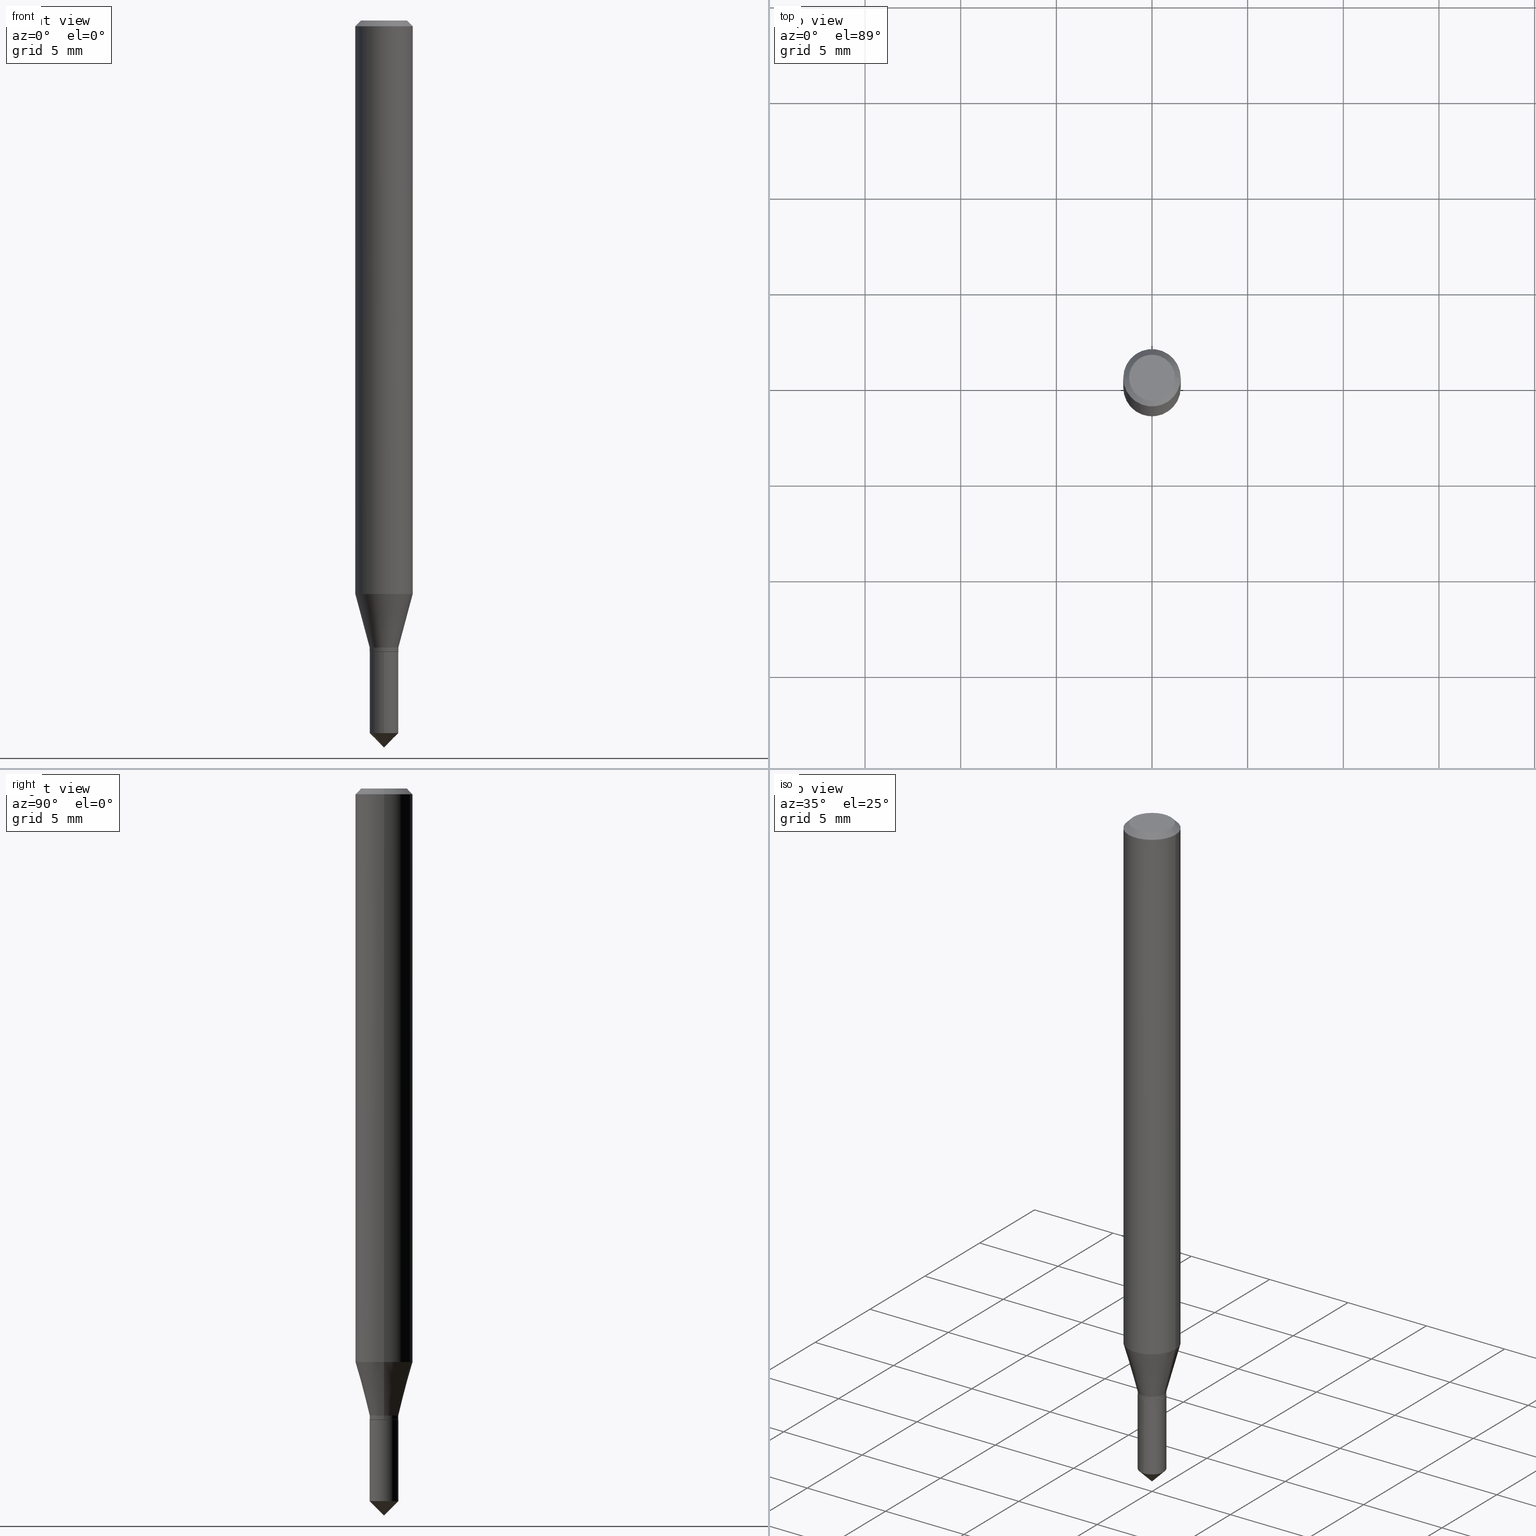
[diagram: canonical four-view strip — front | top / right | iso, engineering-drawing reading convention]
A machine part, canonical four-view strip (front | top / right | iso — engineering-drawing reading convention). The complete STEP part file that produces these views, byte-faithful:
ISO-10303-21;
HEADER;
FILE_DESCRIPTION (( 'STEP AP203' ),
    '1' );
FILE_NAME ('07037.STEP',
    '2024-04-23T19:21:59',
    ( '' ),
    ( '' ),
    'SwSTEP 2.0',
    'SolidWorks 2023',
    '' );
FILE_SCHEMA (( 'CONFIG_CONTROL_DESIGN' ));
ENDSEC;

DATA;
#1 = AXIS2_PLACEMENT_3D ( 'NONE', #48, #167, #169 ) ;
#2 = DIRECTION ( 'NONE',  ( -2.438088387897960049E-29, 3.491481338843145188E-15, 1.000000000000000000 ) ) ;
#3 = VECTOR ( 'NONE', #103, 39.37007874015748143 ) ;
#4 = PERSON_AND_ORGANIZATION_ROLE ( 'classification_officer' ) ;
#5 = EDGE_LOOP ( 'NONE', ( #438, #41, #451 ) ) ;
#6 = CARTESIAN_POINT ( 'NONE',  ( -2.063465471255932489E-16, -0.02955000000000511384, -1.466550000000000020 ) ) ;
#7 = PERSON_AND_ORGANIZATION_ROLE ( 'design_supplier' ) ;
#8 = EDGE_CURVE ( 'NONE', #191, #115, #368, .T. ) ;
#9 = VERTEX_POINT ( 'NONE', #397 ) ;
#10 = DIRECTION ( 'NONE',  ( -2.456664372604500601E-29, 3.475448650518548198E-15, 1.000000000000000000 ) ) ;
#11 = VECTOR ( 'NONE', #177, 39.37007874015747433 ) ;
#12 = CONICAL_SURFACE ( 'NONE', #30, 0.05904999999999999832, 0.7853981633974452814 ) ;
#13 = ORIENTED_EDGE ( 'NONE', *, *, #104, .F. ) ;
#14 = VECTOR ( 'NONE', #237, 39.37007874015748143 ) ;
#15 = DIRECTION ( 'NONE',  ( -2.445468806185136597E-29, 3.491481338843145583E-15, 1.000000000000000000 ) ) ;
#16 = ORIENTED_EDGE ( 'NONE', *, *, #302, .F. ) ;
#17 = DIRECTION ( 'NONE',  ( -2.445468806185136597E-29, 3.491481338843145583E-15, 1.000000000000000000 ) ) ;
#18 = AXIS2_PLACEMENT_3D ( 'NONE', #67, #476, #141 ) ;
#19 = EDGE_LOOP ( 'NONE', ( #22, #416, #166, #194 ) ) ;
#20 = FACE_OUTER_BOUND ( 'NONE', #374, .T. ) ;
#21 = EDGE_CURVE ( 'NONE', #426, #285, #155, .T. ) ;
#22 = ORIENTED_EDGE ( 'NONE', *, *, #364, .F. ) ;
#23 = AXIS2_PLACEMENT_3D ( 'NONE', #260, #304, #114 ) ;
#24 = LINE ( 'NONE', #175, #341 ) ;
#25 = AXIS2_PLACEMENT_3D ( 'NONE', #204, #10, #137 ) ;
#26 = DIRECTION ( 'NONE',  ( -2.445468806185136597E-29, 3.491481338843145583E-15, 1.000000000000000000 ) ) ;
#27 = CC_DESIGN_PERSON_AND_ORGANIZATION_ASSIGNMENT ( #120, #486, ( #144 ) ) ;
#28 = CARTESIAN_POINT ( 'NONE',  ( 8.265746106709734507E-48, -1.180129479067563789E-33, -3.380025165646692144E-19 ) ) ;
#29 = LINE ( 'NONE', #143, #138 ) ;
#30 = AXIS2_PLACEMENT_3D ( 'NONE', #75, #40, #69 ) ;
#31 = CIRCLE ( 'NONE', #454, 0.05904999999999999832 ) ;
#32 = CARTESIAN_POINT ( 'NONE',  ( 2.886153292546952505E-29, -4.120661991877192958E-15, -1.180204501176717713 ) ) ;
#33 = EDGE_CURVE ( 'NONE', #431, #9, #54, .T. ) ;
#34 = DIRECTION ( 'NONE',  ( 1.000000000000000000, -6.982962677686266711E-15, 4.876176775795936353E-29 ) ) ;
#35 = PRODUCT_DEFINITION_FORMATION_WITH_SPECIFIED_SOURCE ( 'ANY', '', #254, .NOT_KNOWN. ) ;
#36 = AXIS2_PLACEMENT_3D ( 'NONE', #432, #15, #86 ) ;
#37 = ADVANCED_FACE ( 'NONE', ( #277 ), #265, .T. ) ;
#38 = FACE_OUTER_BOUND ( 'NONE', #43, .T. ) ;
#39 = ORIENTED_EDGE ( 'NONE', *, *, #33, .T. ) ;
#40 = DIRECTION ( 'NONE',  ( 2.445468806185136597E-29, -3.491481338843145583E-15, -1.000000000000000000 ) ) ;
#41 = ORIENTED_EDGE ( 'NONE', *, *, #403, .T. ) ;
#42 = COORDINATED_UNIVERSAL_TIME_OFFSET ( 5, 0, .BEHIND. ) ;
#43 = EDGE_LOOP ( 'NONE', ( #378, #281, #82, #305 ) ) ;
#44 = LINE ( 'NONE', #358, #173 ) ;
#45 = ADVANCED_FACE ( 'NONE', ( #91 ), #243, .T. ) ;
#46 = PERSON_AND_ORGANIZATION ( #371, #363 ) ;
#47 = ORIENTED_EDGE ( 'NONE', *, *, #364, .T. ) ;
#48 = CARTESIAN_POINT ( 'NONE',  ( 3.155388400620681599E-29, -4.505058371509310392E-15, -1.290300000000000002 ) ) ;
#49 = VERTEX_POINT ( 'NONE', #406 ) ;
#50 = MANIFOLD_SOLID_BREP ( 'Body-Move/Copy2[2]', #386 ) ;
#51 = DIRECTION ( 'NONE',  ( 1.000000000000000000, -6.982962677686277755E-15, 0.000000000000000000 ) ) ;
#52 = CC_DESIGN_APPROVAL ( #283, ( #185 ) ) ;
#53 = DIRECTION ( 'NONE',  ( -2.445468806185136597E-29, 3.491481338843145583E-15, 1.000000000000000000 ) ) ;
#54 = CIRCLE ( 'NONE', #209, 0.02904999999999999943 ) ;
#55 = LINE ( 'NONE', #460, #290 ) ;
#56 = APPROVAL ( #384, 'UNSPECIFIED' ) ;
#57 = CARTESIAN_POINT ( 'NONE',  ( 0.000000000000000000, 0.000000000000000000, 0.000000000000000000 ) ) ;
#58 = FACE_OUTER_BOUND ( 'NONE', #131, .T. ) ;
#59 = ORIENTED_EDGE ( 'NONE', *, *, #321, .T. ) ;
#60 = CARTESIAN_POINT ( 'NONE',  ( 0.02954999999999998253, -4.711404918634939214E-15, -1.290300000000000002 ) ) ;
#61 = LOCAL_TIME ( 15, 21, 59.00000000000000000, #490 ) ;
#62 = CARTESIAN_POINT ( 'NONE',  ( -0.02954999999999998253, -4.295092993092201035E-15, -1.290300000000000002 ) ) ;
#63 = EDGE_CURVE ( 'NONE', #274, #49, #31, .T. ) ;
#64 = UNCERTAINTY_MEASURE_WITH_UNIT (LENGTH_MEASURE( 1.000000000000000082E-05 ), #221, 'distance_accuracy_value', 'NONE');
#65 = CYLINDRICAL_SURFACE ( 'NONE', #258, 0.02954999999999998253 ) ;
#66 = CARTESIAN_POINT ( 'NONE',  ( 0.000000000000000000, 0.000000000000000000, 0.000000000000000000 ) ) ;
#67 = CARTESIAN_POINT ( 'NONE',  ( 3.588275855751092435E-29, -5.117748887089293560E-15, -1.466550000000000020 ) ) ;
#68 = ADVANCED_FACE ( 'NONE', ( #20 ), #242, .T. ) ;
#69 = DIRECTION ( 'NONE',  ( -1.000000000000000000, 6.982962677686266711E-15, 0.000000000000000000 ) ) ;
#70 = EDGE_LOOP ( 'NONE', ( #389, #47, #385, #159 ) ) ;
#71 = CYLINDRICAL_SURFACE ( 'NONE', #264, 0.02954999999999998253 ) ;
#72 = EDGE_LOOP ( 'NONE', ( #234, #322, #112 ) ) ;
#73 = ADVANCED_FACE ( 'NONE', ( #280 ), #396, .T. ) ;
#74 = FACE_OUTER_BOUND ( 'NONE', #272, .T. ) ;
#75 = CARTESIAN_POINT ( 'NONE',  ( 2.888098660104664204E-31, -4.123439461173780263E-17, -0.01181000000000007218 ) ) ;
#76 = EDGE_LOOP ( 'NONE', ( #324, #345 ) ) ;
#77 = COORDINATED_UNIVERSAL_TIME_OFFSET ( 5, 0, .BEHIND. ) ;
#78 = PERSON_AND_ORGANIZATION ( #371, #363 ) ;
#79 = ORIENTED_EDGE ( 'NONE', *, *, #375, .T. ) ;
#80 = CIRCLE ( 'NONE', #192, 0.02954999999999998253 ) ;
#81 = AXIS2_PLACEMENT_3D ( 'NONE', #351, #239, #135 ) ;
#82 = ORIENTED_EDGE ( 'NONE', *, *, #157, .T. ) ;
#83 = ADVANCED_FACE ( 'NONE', ( #430 ), #306, .T. ) ;
#84 = DIRECTION ( 'NONE',  ( -0.7071067811865453523, 2.468850131082234184E-15, -0.7071067811865496822 ) ) ;
#85 = CARTESIAN_POINT ( 'NONE',  ( 2.886153292546952505E-29, -4.120661991877192958E-15, -1.180204501176717713 ) ) ;
#86 = DIRECTION ( 'NONE',  ( 1.000000000000000000, -6.982962677686265922E-15, 0.000000000000000000 ) ) ;
#87 = ORIENTED_EDGE ( 'NONE', *, *, #375, .F. ) ;
#88 = CARTESIAN_POINT ( 'NONE',  ( 3.175930338592637077E-29, -4.534386814755593230E-15, -1.298699999999999966 ) ) ;
#89 = EDGE_CURVE ( 'NONE', #285, #426, #482, .T. ) ;
#90 = CONICAL_SURFACE ( 'NONE', #235, 0.02904999999999999943, 0.7853981633978068810 ) ;
#91 = FACE_OUTER_BOUND ( 'NONE', #70, .T. ) ;
#92 = CIRCLE ( 'NONE', #217, 0.02954999999999998253 ) ;
#93 = CARTESIAN_POINT ( 'NONE',  ( -2.063465471255973904E-16, -0.02955000000000453791, -1.299199999999999910 ) ) ;
#94 = DIRECTION ( 'NONE',  ( -2.445468806185136597E-29, 3.491481338843145583E-15, 1.000000000000000000 ) ) ;
#95 = DIRECTION ( 'NONE',  ( 1.000000000000000000, -6.982962677686265922E-15, 0.000000000000000000 ) ) ;
#96 = VECTOR ( 'NONE', #409, 39.37007874015748854 ) ;
#97 = CC_DESIGN_PERSON_AND_ORGANIZATION_ASSIGNMENT ( #418, #379, ( #254 ) ) ;
#98 = DIRECTION ( 'NONE',  ( 1.000000000000000000, -6.982962677686277755E-15, 0.000000000000000000 ) ) ;
#99 = CARTESIAN_POINT ( 'NONE',  ( -2.063465471255973657E-16, -0.02955000000000453445, -1.299199999999999910 ) ) ;
#100 = CC_DESIGN_SECURITY_CLASSIFICATION ( #185, ( #35 ) ) ;
#101 = DESIGN_CONTEXT ( 'detailed design', #172, 'design' ) ;
#102 = DIRECTION ( 'NONE',  ( 5.024295867788063179E-15, 0.7071067811865501263, 0.7071067811865449082 ) ) ;
#103 = DIRECTION ( 'NONE',  ( -2.445468806185136877E-29, 3.491481338843145188E-15, 1.000000000000000000 ) ) ;
#104 = EDGE_CURVE ( 'NONE', #424, #459, #92, .T. ) ;
#105 = DIRECTION ( 'NONE',  ( -2.445468806185136597E-29, 3.491481338843145583E-15, 1.000000000000000000 ) ) ;
#106 = CARTESIAN_POINT ( 'NONE',  ( -0.02904999999999999943, -4.329719890686704697E-15, -1.299199999999999688 ) ) ;
#107 =( GEOMETRIC_REPRESENTATION_CONTEXT ( 3 ) GLOBAL_UNCERTAINTY_ASSIGNED_CONTEXT ( ( #64 ) ) GLOBAL_UNIT_ASSIGNED_CONTEXT ( ( #221, #377, #150 ) ) REPRESENTATION_CONTEXT ( 'NONE', 'WORKASPACE' ) );
#108 = AXIS2_PLACEMENT_3D ( 'NONE', #428, #286, #51 ) ;
#109 = APPLICATION_PROTOCOL_DEFINITION ( 'international standard', 'config_control_design', 1994, #347 ) ;
#110 = CALENDAR_DATE ( 2024, 23, 4 ) ;
#111 = PLANE ( 'NONE',  #296 ) ;
#112 = ORIENTED_EDGE ( 'NONE', *, *, #356, .F. ) ;
#113 = CC_DESIGN_PERSON_AND_ORGANIZATION_ASSIGNMENT ( #161, #4, ( #185 ) ) ;
#114 = DIRECTION ( 'NONE',  ( -6.982962677686265922E-15, -1.000000000000000000, 0.000000000000000000 ) ) ;
#115 = VERTEX_POINT ( 'NONE', #470 ) ;
#116 = CALENDAR_DATE ( 2024, 23, 4 ) ;
#117 = AXIS2_PLACEMENT_3D ( 'NONE', #390, #353, #247 ) ;
#118 = FACE_OUTER_BOUND ( 'NONE', #207, .T. ) ;
#119 = EDGE_LOOP ( 'NONE', ( #87, #39, #240, #219 ) ) ;
#120 = PERSON_AND_ORGANIZATION ( #371, #363 ) ;
#121 = COORDINATED_UNIVERSAL_TIME_OFFSET ( 5, 0, .BEHIND. ) ;
#122 = ORIENTED_EDGE ( 'NONE', *, *, #356, .T. ) ;
#123 = PERSON_AND_ORGANIZATION ( #371, #363 ) ;
#124 = EDGE_CURVE ( 'NONE', #151, #274, #55, .T. ) ;
#125 = ORIENTED_EDGE ( 'NONE', *, *, #228, .F. ) ;
#126 = LINE ( 'NONE', #275, #14 ) ;
#127 = CC_DESIGN_APPROVAL ( #457, ( #35 ) ) ;
#128 = CONICAL_SURFACE ( 'NONE', #405, 0.05904999999999999832, 0.7853981633974452814 ) ;
#129 = ORIENTED_EDGE ( 'NONE', *, *, #21, .F. ) ;
#130 = FACE_OUTER_BOUND ( 'NONE', #236, .T. ) ;
#131 = EDGE_LOOP ( 'NONE', ( #429, #359, #487, #261 ) ) ;
#132 = CARTESIAN_POINT ( 'NONE',  ( -0.05905000000000014404, -3.701086506410853465E-15, -1.180204501176717713 ) ) ;
#133 = ADVANCED_FACE ( 'NONE', ( #434 ), #463, .T. ) ;
#134 = DIRECTION ( 'NONE',  ( -6.982962677686265922E-15, -1.000000000000000000, 3.552713678800499746E-15 ) ) ;
#135 = DIRECTION ( 'NONE',  ( -6.982962677686265922E-15, -1.000000000000000000, 0.000000000000000000 ) ) ;
#136 = ORIENTED_EDGE ( 'NONE', *, *, #348, .F. ) ;
#137 = DIRECTION ( 'NONE',  ( -6.982962677686265922E-15, -1.000000000000000000, 0.000000000000000000 ) ) ;
#138 = VECTOR ( 'NONE', #256, 39.37007874015748143 ) ;
#139 = CARTESIAN_POINT ( 'NONE',  ( 3.177153072995728197E-29, -4.536132555425013945E-15, -1.299199999999999688 ) ) ;
#140 = DIRECTION ( 'NONE',  ( 1.000000000000000000, -6.982962677686266711E-15, 4.876185090822587894E-29 ) ) ;
#141 = DIRECTION ( 'NONE',  ( -6.982962677686265922E-15, -1.000000000000000000, 0.000000000000000000 ) ) ;
#142 = AXIS2_PLACEMENT_3D ( 'NONE', #366, #480, #210 ) ;
#143 = CARTESIAN_POINT ( 'NONE',  ( 0.05905000000000006771, -4.123439461173745257E-16, 2.879382386107503723E-30 ) ) ;
#144 = PRODUCT_DEFINITION ( 'UNKNOWN', '', #35, #101 ) ;
#145 = CARTESIAN_POINT ( 'NONE',  ( 0.02954999999999998253, -2.063465471256290681E-16, 1.440910237247698194E-30 ) ) ;
#146 = EDGE_CURVE ( 'NONE', #9, #431, #297, .T. ) ;
#147 =( LENGTH_UNIT ( ) NAMED_UNIT ( * ) SI_UNIT ( $, .METRE. ) );
#148 = PERSON_AND_ORGANIZATION_ROLE ( 'creator' ) ;
#149 = PRODUCT_DEFINITION_SHAPE ( 'NONE', 'NONE',  #144 ) ;
#150 =( NAMED_UNIT ( * ) SI_UNIT ( $, .STERADIAN. ) SOLID_ANGLE_UNIT ( ) );
#151 = VERTEX_POINT ( 'NONE', #201 ) ;
#152 = APPROVAL_ROLE ( '' ) ;
#153 = CARTESIAN_POINT ( 'NONE',  ( 2.888098660104664204E-31, -4.123439461173780263E-17, -0.01181000000000007218 ) ) ;
#154 = ORIENTED_EDGE ( 'NONE', *, *, #146, .F. ) ;
#155 = CIRCLE ( 'NONE', #376, 0.02954999999999998253 ) ;
#156 = LENGTH_MEASURE_WITH_UNIT ( LENGTH_MEASURE( 0.02539999999999999897 ), #147 );
#157 = EDGE_CURVE ( 'NONE', #336, #49, #44, .T. ) ;
#158 = APPROVAL_ROLE ( '' ) ;
#159 = ORIENTED_EDGE ( 'NONE', *, *, #334, .F. ) ;
#160 = CARTESIAN_POINT ( 'NONE',  ( 2.099653784171454233E-16, 0.02954999999999487897, -1.466550000000000020 ) ) ;
#161 = PERSON_AND_ORGANIZATION ( #371, #363 ) ;
#162 = ORIENTED_EDGE ( 'NONE', *, *, #89, .T. ) ;
#163 = DIRECTION ( 'NONE',  ( 0.7071067811865453523, -7.319954787623248157E-15, -0.7071067811865496822 ) ) ;
#164 = CIRCLE ( 'NONE', #224, 0.02954999999999999641 ) ;
#165 = ADVANCED_FACE ( 'NONE', ( #198 ), #439, .T. ) ;
#166 = ORIENTED_EDGE ( 'NONE', *, *, #334, .T. ) ;
#167 = DIRECTION ( 'NONE',  ( -2.445468806185136597E-29, 3.491481338843145583E-15, 1.000000000000000000 ) ) ;
#168 = ORIENTED_EDGE ( 'NONE', *, *, #348, .T. ) ;
#169 = DIRECTION ( 'NONE',  ( 1.000000000000000000, -6.982962677686265922E-15, 0.000000000000000000 ) ) ;
#170 = VERTEX_POINT ( 'NONE', #93 ) ;
#171 = CARTESIAN_POINT ( 'NONE',  ( 3.675415567853592762E-29, -5.199618726040799515E-15, -1.496099999999999985 ) ) ;
#172 = APPLICATION_CONTEXT ( 'configuration controlled 3d designs of mechanical parts and assemblies' ) ;
#173 = VECTOR ( 'NONE', #84, 39.37007874015748143 ) ;
#174 = DIRECTION ( 'NONE',  ( 1.000000000000000000, -6.982962677686272233E-15, 0.000000000000000000 ) ) ;
#175 = CARTESIAN_POINT ( 'NONE',  ( 3.646325008069517362E-29, -5.241278063383433293E-15, -1.496099999999999985 ) ) ;
#176 = ADVANCED_FACE ( 'NONE', ( #58 ), #128, .T. ) ;
#177 = DIRECTION ( 'NONE',  ( -0.2588190451025214611, 5.211531920934551042E-15, 0.9659258262890682012 ) ) ;
#178 = CARTESIAN_POINT ( 'NONE',  ( -0.04724000000000000421, 3.504923541997677355E-16, -3.380025165670481712E-19 ) ) ;
#179 = EDGE_CURVE ( 'NONE', #336, #151, #250, .T. ) ;
#180 = DIRECTION ( 'NONE',  ( 0.2588190451025214611, 1.565188264969621573E-15, 0.9659258262890682012 ) ) ;
#181 = AXIS2_PLACEMENT_3D ( 'NONE', #85, #312, #174 ) ;
#182 = DIRECTION ( 'NONE',  ( -2.445468806185136877E-29, 3.491481338843145188E-15, 1.000000000000000000 ) ) ;
#183 = CARTESIAN_POINT ( 'NONE',  ( 0.000000000000000000, 0.000000000000000000, 0.000000000000000000 ) ) ;
#184 = ADVANCED_FACE ( 'NONE', ( #398 ), #202, .T. ) ;
#185 = SECURITY_CLASSIFICATION ( '', '', #193 ) ;
#186 = DIRECTION ( 'NONE',  ( 1.000000000000000000, -6.982962677686265922E-15, 4.876176775795935793E-29 ) ) ;
#187 = VERTEX_POINT ( 'NONE', #171 ) ;
#188 = DATE_AND_TIME ( #110, #262 ) ;
#189 = APPLICATION_PROTOCOL_DEFINITION ( 'international standard', 'config_control_design', 1994, #172 ) ;
#190 = ADVANCED_BREP_SHAPE_REPRESENTATION ( '07037', ( #391, #50, #425 ), #107 ) ;
#191 = VERTEX_POINT ( 'NONE', #132 ) ;
#192 = AXIS2_PLACEMENT_3D ( 'NONE', #372, #268, #339 ) ;
#193 = SECURITY_CLASSIFICATION_LEVEL ( 'unclassified' ) ;
#194 = ORIENTED_EDGE ( 'NONE', *, *, #471, .F. ) ;
#195 = CARTESIAN_POINT ( 'NONE',  ( 3.588275855751092435E-29, -5.117748887089293560E-15, -1.466550000000000020 ) ) ;
#196 = DATE_AND_TIME ( #116, #61 ) ;
#197 = EDGE_LOOP ( 'NONE', ( #136, #465, #279, #16 ) ) ;
#198 = FACE_OUTER_BOUND ( 'NONE', #197, .T. ) ;
#199 = CC_DESIGN_PERSON_AND_ORGANIZATION_ASSIGNMENT ( #46, #7, ( #35 ) ) ;
#200 = ORIENTED_EDGE ( 'NONE', *, *, #146, .T. ) ;
#201 = CARTESIAN_POINT ( 'NONE',  ( 0.04724000000000000421, -3.852183633974369345E-16, -3.380025165621689721E-19 ) ) ;
#202 = CONICAL_SURFACE ( 'NONE', #443, 0.02954999999999998253, 0.2617993877991501295 ) ;
#203 = CARTESIAN_POINT ( 'NONE',  ( -9.305819949961722198E-28, 1.316082386335771911E-13, 37.87397874015748300 ) ) ;
#204 = CARTESIAN_POINT ( 'NONE',  ( 3.177153072995728757E-29, -4.536132555425014733E-15, -1.299199999999999910 ) ) ;
#205 = EDGE_LOOP ( 'NONE', ( #456, #421, #352, #467 ) ) ;
#206 = CARTESIAN_POINT ( 'NONE',  ( 3.155388400620681599E-29, -4.505058371509310392E-15, -1.290300000000000002 ) ) ;
#207 = EDGE_LOOP ( 'NONE', ( #154, #413 ) ) ;
#208 = LINE ( 'NONE', #214, #399 ) ;
#209 = AXIS2_PLACEMENT_3D ( 'NONE', #246, #53, #462 ) ;
#210 = DIRECTION ( 'NONE',  ( -1.000000000000000000, 6.982962677686265922E-15, -4.876176775795935793E-29 ) ) ;
#211 = DIRECTION ( 'NONE',  ( 1.000000000000000000, -6.982962677686266711E-15, 4.876176775795935793E-29 ) ) ;
#212 = DIMENSIONAL_EXPONENTS ( 1.000000000000000000, 0.000000000000000000, 0.000000000000000000, 0.000000000000000000, 0.000000000000000000, 0.000000000000000000, 0.000000000000000000 ) ;
#213 = EDGE_CURVE ( 'NONE', #227, #222, #164, .T. ) ;
#214 = CARTESIAN_POINT ( 'NONE',  ( 0.02904999999999999943, -4.738987621211800548E-15, -1.299199999999999688 ) ) ;
#215 = CIRCLE ( 'NONE', #477, 0.05904999999999999832 ) ;
#216 = LINE ( 'NONE', #370, #452 ) ;
#217 = AXIS2_PLACEMENT_3D ( 'NONE', #88, #282, #468 ) ;
#218 = DIRECTION ( 'NONE',  ( 1.000000000000000000, -6.982962677686266711E-15, 0.000000000000000000 ) ) ;
#219 = ORIENTED_EDGE ( 'NONE', *, *, #448, .F. ) ;
#220 = DATE_AND_TIME ( #419, #335 ) ;
#221 =( CONVERSION_BASED_UNIT ( 'INCH', #156 ) LENGTH_UNIT ( ) NAMED_UNIT ( #212 ) );
#222 = VERTEX_POINT ( 'NONE', #6 ) ;
#223 = AXIS2_PLACEMENT_3D ( 'NONE', #257, #420, #450 ) ;
#224 = AXIS2_PLACEMENT_3D ( 'NONE', #195, #346, #464 ) ;
#225 = APPROVAL_DATE_TIME ( #423, #56 ) ;
#226 = CARTESIAN_POINT ( 'NONE',  ( 0.000000000000000000, 0.000000000000000000, 0.000000000000000000 ) ) ;
#227 = VERTEX_POINT ( 'NONE', #160 ) ;
#228 = EDGE_CURVE ( 'NONE', #459, #426, #126, .T. ) ;
#229 = DIRECTION ( 'NONE',  ( -2.445468806185136597E-29, 3.491481338843145583E-15, 1.000000000000000000 ) ) ;
#230 = DIRECTION ( 'NONE',  ( -2.445468806185136597E-29, 3.491481338843145583E-15, 1.000000000000000000 ) ) ;
#231 = ORIENTED_EDGE ( 'NONE', *, *, #440, .F. ) ;
#232 = DATE_TIME_ROLE ( 'classification_date' ) ;
#233 = APPROVAL_ROLE ( '' ) ;
#234 = ORIENTED_EDGE ( 'NONE', *, *, #403, .F. ) ;
#235 = AXIS2_PLACEMENT_3D ( 'NONE', #139, #441, #98 ) ;
#236 = EDGE_LOOP ( 'NONE', ( #317, #319 ) ) ;
#237 = DIRECTION ( 'NONE',  ( -2.445468806185136877E-29, 3.491481338843145188E-15, 1.000000000000000000 ) ) ;
#238 = ORIENTED_EDGE ( 'NONE', *, *, #253, .F. ) ;
#239 = DIRECTION ( 'NONE',  ( -2.456664372604500601E-29, 3.475448650518548198E-15, 1.000000000000000000 ) ) ;
#240 = ORIENTED_EDGE ( 'NONE', *, *, #394, .T. ) ;
#241 = DIRECTION ( 'NONE',  ( 1.000000000000000000, -6.982962677686277755E-15, 0.000000000000000000 ) ) ;
#242 = CONICAL_SURFACE ( 'NONE', #427, 0.02904999999999999943, 0.7853981633978068810 ) ;
#243 = CYLINDRICAL_SURFACE ( 'NONE', #284, 0.05905000000000006771 ) ;
#244 = DIRECTION ( 'NONE',  ( 2.445468806185136597E-29, -3.491481338843145583E-15, -1.000000000000000000 ) ) ;
#245 = ADVANCED_FACE ( 'NONE', ( #130 ), #278, .F. ) ;
#246 = CARTESIAN_POINT ( 'NONE',  ( 3.177153072995728197E-29, -4.536132555425013945E-15, -1.299199999999999688 ) ) ;
#247 = DIRECTION ( 'NONE',  ( -6.982962677686265922E-15, -1.000000000000000000, 3.552713678800499746E-15 ) ) ;
#248 = LINE ( 'NONE', #62, #11 ) ;
#249 = APPROVAL_PERSON_ORGANIZATION ( #78, #56, #233 ) ;
#250 = CIRCLE ( 'NONE', #315, 0.04724000000000000421 ) ;
#251 = DIRECTION ( 'NONE',  ( -2.456664372604500601E-29, 3.475448650518548198E-15, 1.000000000000000000 ) ) ;
#252 = CIRCLE ( 'NONE', #485, 0.04724000000000000421 ) ;
#253 = EDGE_CURVE ( 'NONE', #222, #170, #325, .T. ) ;
#254 = PRODUCT ( '07037', '07037', '', ( #337 ) ) ;
#255 = DIRECTION ( 'NONE',  ( 1.000000000000000000, -6.982962677686272233E-15, 0.000000000000000000 ) ) ;
#256 = DIRECTION ( 'NONE',  ( -2.445468806185136877E-29, 3.491481338843145188E-15, 1.000000000000000000 ) ) ;
#257 = CARTESIAN_POINT ( 'NONE',  ( 3.177153072995728757E-29, -4.536132555425014733E-15, -1.299199999999999910 ) ) ;
#258 = AXIS2_PLACEMENT_3D ( 'NONE', #66, #446, #211 ) ;
#259 = EDGE_CURVE ( 'NONE', #285, #115, #331, .T. ) ;
#260 = CARTESIAN_POINT ( 'NONE',  ( 3.177153072995728757E-29, -4.536132555425014733E-15, -1.299199999999999910 ) ) ;
#261 = ORIENTED_EDGE ( 'NONE', *, *, #157, .F. ) ;
#262 = LOCAL_TIME ( 15, 21, 59.00000000000000000, #42 ) ;
#263 = EDGE_LOOP ( 'NONE', ( #125, #299, #59, #129 ) ) ;
#264 = AXIS2_PLACEMENT_3D ( 'NONE', #412, #230, #415 ) ;
#265 = CONICAL_SURFACE ( 'NONE', #330, 39.37007874015749564, 0.7853981633974485010 ) ;
#266 = EDGE_CURVE ( 'NONE', #151, #336, #252, .T. ) ;
#267 = APPROVAL_DATE_TIME ( #220, #457 ) ;
#268 = DIRECTION ( 'NONE',  ( -2.445468806185136597E-29, 3.491481338843145583E-15, 1.000000000000000000 ) ) ;
#269 = ORIENTED_EDGE ( 'NONE', *, *, #321, .F. ) ;
#270 = CIRCLE ( 'NONE', #18, 0.02954999999999999641 ) ;
#271 = CALENDAR_DATE ( 2024, 23, 4 ) ;
#272 = EDGE_LOOP ( 'NONE', ( #380, #309, #392, #269 ) ) ;
#273 = EDGE_CURVE ( 'NONE', #115, #191, #408, .T. ) ;
#274 = VERTEX_POINT ( 'NONE', #402 ) ;
#275 = CARTESIAN_POINT ( 'NONE',  ( -0.02954999999999998253, 2.099653784171094808E-16, -1.453545319170323675E-30 ) ) ;
#276 = APPROVAL_PERSON_ORGANIZATION ( #349, #457, #152 ) ;
#277 = FACE_OUTER_BOUND ( 'NONE', #5, .T. ) ;
#278 = PLANE ( 'NONE',  #142 ) ;
#279 = ORIENTED_EDGE ( 'NONE', *, *, #253, .T. ) ;
#280 = FACE_OUTER_BOUND ( 'NONE', #400, .T. ) ;
#281 = ORIENTED_EDGE ( 'NONE', *, *, #179, .F. ) ;
#282 = DIRECTION ( 'NONE',  ( -2.445468806185136597E-29, 3.491481338843145583E-15, 1.000000000000000000 ) ) ;
#283 = APPROVAL ( #340, 'UNSPECIFIED' ) ;
#284 = AXIS2_PLACEMENT_3D ( 'NONE', #57, #105, #292 ) ;
#285 = VERTEX_POINT ( 'NONE', #365 ) ;
#286 = DIRECTION ( 'NONE',  ( -2.445468806185136597E-29, 3.491481338843145583E-15, 1.000000000000000000 ) ) ;
#287 = DIRECTION ( 'NONE',  ( -4.937700262164548831E-15, -0.7071067811865452413, 0.7071067811865497932 ) ) ;
#288 = CC_DESIGN_PERSON_AND_ORGANIZATION_ASSIGNMENT ( #123, #148, ( #35 ) ) ;
#289 = CARTESIAN_POINT ( 'NONE',  ( -0.02904999999999999943, -4.327070663512594284E-15, -1.299199999999999688 ) ) ;
#290 = VECTOR ( 'NONE', #163, 39.37007874015748143 ) ;
#291 = LINE ( 'NONE', #106, #96 ) ;
#292 = DIRECTION ( 'NONE',  ( 1.000000000000000000, -6.982962677686266711E-15, 4.876176775795936353E-29 ) ) ;
#293 = CARTESIAN_POINT ( 'NONE',  ( 2.099653784171413311E-16, 0.02954999999999545837, -1.299199999999999910 ) ) ;
#294 = CARTESIAN_POINT ( 'NONE',  ( 3.675670657724248735E-29, -5.199618726040799515E-15, -1.496099999999999985 ) ) ;
#295 = PRODUCT_RELATED_PRODUCT_CATEGORY ( 'detail', '', ( #254 ) ) ;
#296 = AXIS2_PLACEMENT_3D ( 'NONE', #455, #2, #186 ) ;
#297 = CIRCLE ( 'NONE', #108, 0.02904999999999999943 ) ;
#298 = FACE_OUTER_BOUND ( 'NONE', #19, .T. ) ;
#299 = ORIENTED_EDGE ( 'NONE', *, *, #448, .T. ) ;
#300 = DATE_AND_TIME ( #303, #354 ) ;
#301 = DIRECTION ( 'NONE',  ( 0.000000000000000000, 0.000000000000000000, 1.000000000000000000 ) ) ;
#302 = EDGE_CURVE ( 'NONE', #382, #170, #316, .T. ) ;
#303 = CALENDAR_DATE ( 2024, 23, 4 ) ;
#304 = DIRECTION ( 'NONE',  ( -2.456664372604500601E-29, 3.475448650518548198E-15, 1.000000000000000000 ) ) ;
#305 = ORIENTED_EDGE ( 'NONE', *, *, #471, .T. ) ;
#306 = CONICAL_SURFACE ( 'NONE', #117, 39.37007874015749564, 0.7853981633974485010 ) ;
#307 = CARTESIAN_POINT ( 'NONE',  ( -0.02954999999999998253, -4.309757214715342453E-15, -1.298699999999999966 ) ) ;
#308 = SHAPE_DEFINITION_REPRESENTATION ( #149, #190 ) ;
#309 = ORIENTED_EDGE ( 'NONE', *, *, #228, .T. ) ;
#310 = DIRECTION ( 'NONE',  ( 1.000000000000000000, -6.982962677686266711E-15, 4.876185090822587894E-29 ) ) ;
#311 = PERSON_AND_ORGANIZATION ( #371, #363 ) ;
#312 = DIRECTION ( 'NONE',  ( -2.445468806185136597E-29, 3.491481338843145583E-15, 1.000000000000000000 ) ) ;
#313 = CARTESIAN_POINT ( 'NONE',  ( 8.265746106709734507E-48, -1.180129479067563789E-33, -3.380025165646692144E-19 ) ) ;
#314 = CIRCLE ( 'NONE', #23, 0.02954999999999999988 ) ;
#315 = AXIS2_PLACEMENT_3D ( 'NONE', #313, #466, #310 ) ;
#316 = CIRCLE ( 'NONE', #437, 0.02954999999999999988 ) ;
#317 = ORIENTED_EDGE ( 'NONE', *, *, #179, .T. ) ;
#318 = DIRECTION ( 'NONE',  ( -1.000000000000000000, 6.982962677686266711E-15, 0.000000000000000000 ) ) ;
#319 = ORIENTED_EDGE ( 'NONE', *, *, #266, .T. ) ;
#320 = CARTESIAN_POINT ( 'NONE',  ( 3.177153072995728197E-29, -4.536132555425013945E-15, -1.299199999999999688 ) ) ;
#321 = EDGE_CURVE ( 'NONE', #424, #285, #444, .T. ) ;
#322 = ORIENTED_EDGE ( 'NONE', *, *, #369, .T. ) ;
#323 = CARTESIAN_POINT ( 'NONE',  ( 2.888098660104664204E-31, -4.123439461173780263E-17, -0.01181000000000007218 ) ) ;
#324 = ORIENTED_EDGE ( 'NONE', *, *, #440, .T. ) ;
#325 = LINE ( 'NONE', #99, #417 ) ;
#326 = VECTOR ( 'NONE', #102, 39.37007874015748143 ) ;
#327 = ADVANCED_FACE ( 'NONE', ( #479 ), #65, .T. ) ;
#328 = CARTESIAN_POINT ( 'NONE',  ( 0.02954999999999998253, -4.740733361881222840E-15, -1.298699999999999966 ) ) ;
#329 = LINE ( 'NONE', #293, #332 ) ;
#330 = AXIS2_PLACEMENT_3D ( 'NONE', #203, #357, #134 ) ;
#331 = LINE ( 'NONE', #60, #478 ) ;
#332 = VECTOR ( 'NONE', #411, 39.37007874015748143 ) ;
#333 = LINE ( 'NONE', #294, #326 ) ;
#334 = EDGE_CURVE ( 'NONE', #115, #274, #29, .T. ) ;
#335 = LOCAL_TIME ( 15, 21, 59.00000000000000000, #77 ) ;
#336 = VERTEX_POINT ( 'NONE', #178 ) ;
#337 = MECHANICAL_CONTEXT ( 'NONE', #347, 'mechanical' ) ;
#338 = ORIENTED_EDGE ( 'NONE', *, *, #422, .T. ) ;
#339 = DIRECTION ( 'NONE',  ( 1.000000000000000000, -6.982962677686265922E-15, 0.000000000000000000 ) ) ;
#340 = APPROVAL_STATUS ( 'not_yet_approved' ) ;
#341 = VECTOR ( 'NONE', #287, 39.37007874015748143 ) ;
#342 = DIRECTION ( 'NONE',  ( -2.445468806185136597E-29, 3.491481338843145583E-15, 1.000000000000000000 ) ) ;
#343 = APPROVAL_PERSON_ORGANIZATION ( #311, #283, #158 ) ;
#344 = COORDINATED_UNIVERSAL_TIME_OFFSET ( 5, 0, .BEHIND. ) ;
#345 = ORIENTED_EDGE ( 'NONE', *, *, #302, .T. ) ;
#346 = DIRECTION ( 'NONE',  ( -2.456664372604500601E-29, 3.475448650518548198E-15, 1.000000000000000000 ) ) ;
#347 = APPLICATION_CONTEXT ( 'configuration controlled 3d designs of mechanical parts and assemblies' ) ;
#348 = EDGE_CURVE ( 'NONE', #227, #382, #329, .T. ) ;
#349 = PERSON_AND_ORGANIZATION ( #371, #363 ) ;
#350 = ORIENTED_EDGE ( 'NONE', *, *, #259, .F. ) ;
#351 = CARTESIAN_POINT ( 'NONE',  ( 3.177153072995728757E-29, -4.536132555425014733E-15, -1.299199999999999910 ) ) ;
#352 = ORIENTED_EDGE ( 'NONE', *, *, #259, .T. ) ;
#353 = DIRECTION ( 'NONE',  ( -2.456664372604500601E-29, 3.475448650518548198E-15, 1.000000000000000000 ) ) ;
#354 = LOCAL_TIME ( 15, 21, 59.00000000000000000, #344 ) ;
#355 = AXIS2_PLACEMENT_3D ( 'NONE', #32, #26, #255 ) ;
#356 = EDGE_CURVE ( 'NONE', #222, #227, #270, .T. ) ;
#357 = DIRECTION ( 'NONE',  ( -2.456664372604500601E-29, 3.475448650518548198E-15, 1.000000000000000000 ) ) ;
#358 = CARTESIAN_POINT ( 'NONE',  ( -0.05904999999999999832, 3.711095515056362547E-16, -0.01181000000000007218 ) ) ;
#359 = ORIENTED_EDGE ( 'NONE', *, *, #124, .T. ) ;
#360 = DIRECTION ( 'NONE',  ( -2.445468806185136597E-29, 3.491481338843145583E-15, 1.000000000000000000 ) ) ;
#361 = EDGE_LOOP ( 'NONE', ( #162, #338, #469, #350 ) ) ;
#362 = DIRECTION ( 'NONE',  ( 0.7071067811868009256, -2.468850131084911578E-15, 0.7071067811862938868 ) ) ;
#363 = ORGANIZATION ( 'UNSPECIFIED', 'UNSPECIFIED', '' ) ;
#364 = EDGE_CURVE ( 'NONE', #191, #49, #216, .T. ) ;
#365 = CARTESIAN_POINT ( 'NONE',  ( 0.02954999999999998253, -4.711404918634939214E-15, -1.290300000000000002 ) ) ;
#366 = CARTESIAN_POINT ( 'NONE',  ( 4.132873053354867254E-48, -5.900647395337818946E-34, -1.690012582823346072E-19 ) ) ;
#367 = DIRECTION ( 'NONE',  ( -2.445468806185136597E-29, 3.491481338843145583E-15, 1.000000000000000000 ) ) ;
#368 = CIRCLE ( 'NONE', #181, 0.05905000000000014404 ) ;
#369 = EDGE_CURVE ( 'NONE', #187, #227, #333, .T. ) ;
#370 = CARTESIAN_POINT ( 'NONE',  ( -0.05905000000000006771, 4.195754854663396409E-16, -2.904631170795525045E-30 ) ) ;
#371 = PERSON ( 'UNSPECIFIED', 'UNSPECIFIED', 'UNSPECIFIED', ('UNSPECIFIED'), ('UNSPECIFIED'), ('UNSPECIFIED') ) ;
#372 = CARTESIAN_POINT ( 'NONE',  ( 3.175930338592637077E-29, -4.534386814755593230E-15, -1.298699999999999966 ) ) ;
#373 = FACE_OUTER_BOUND ( 'NONE', #76, .T. ) ;
#374 = EDGE_LOOP ( 'NONE', ( #200, #79, #13, #484 ) ) ;
#375 = EDGE_CURVE ( 'NONE', #431, #459, #291, .T. ) ;
#376 = AXIS2_PLACEMENT_3D ( 'NONE', #395, #94, #433 ) ;
#377 =( NAMED_UNIT ( * ) PLANE_ANGLE_UNIT ( ) SI_UNIT ( $, .RADIAN. ) );
#378 = ORIENTED_EDGE ( 'NONE', *, *, #124, .F. ) ;
#379 = PERSON_AND_ORGANIZATION_ROLE ( 'design_owner' ) ;
#380 = ORIENTED_EDGE ( 'NONE', *, *, #104, .T. ) ;
#381 = DIRECTION ( 'NONE',  ( -2.445468806185136597E-29, 3.491481338843145583E-15, 1.000000000000000000 ) ) ;
#382 = VERTEX_POINT ( 'NONE', #401 ) ;
#383 = APPROVAL_DATE_TIME ( #188, #283 ) ;
#384 = APPROVAL_STATUS ( 'not_yet_approved' ) ;
#385 = ORIENTED_EDGE ( 'NONE', *, *, #63, .F. ) ;
#386 = CLOSED_SHELL ( 'NONE', ( #68, #176, #45, #133, #489, #327, #184, #461, #483, #245, #445, #410 ) ) ;
#387 = CC_DESIGN_DATE_AND_TIME_ASSIGNMENT ( #300, #232, ( #185 ) ) ;
#388 = DATE_TIME_ROLE ( 'creation_date' ) ;
#389 = ORIENTED_EDGE ( 'NONE', *, *, #273, .T. ) ;
#390 = CARTESIAN_POINT ( 'NONE',  ( -9.305819949961722198E-28, 1.316082386335771911E-13, 37.87397874015748300 ) ) ;
#391 = MANIFOLD_SOLID_BREP ( 'Body-Move/Copy2[1]', #436 ) ;
#392 = ORIENTED_EDGE ( 'NONE', *, *, #89, .F. ) ;
#393 = DIRECTION ( 'NONE',  ( 1.000000000000000000, -6.982962677686266711E-15, 0.000000000000000000 ) ) ;
#394 = EDGE_CURVE ( 'NONE', #9, #424, #208, .T. ) ;
#395 = CARTESIAN_POINT ( 'NONE',  ( 3.155388400620681599E-29, -4.505058371509310392E-15, -1.290300000000000002 ) ) ;
#396 = CYLINDRICAL_SURFACE ( 'NONE', #25, 0.02954999999999999641 ) ;
#397 = CARTESIAN_POINT ( 'NONE',  ( 0.02904999999999999943, -4.738987621211800548E-15, -1.299199999999999688 ) ) ;
#398 = FACE_OUTER_BOUND ( 'NONE', #205, .T. ) ;
#399 = VECTOR ( 'NONE', #362, 39.37007874015748854 ) ;
#400 = EDGE_LOOP ( 'NONE', ( #122, #168, #231, #238 ) ) ;
#401 = CARTESIAN_POINT ( 'NONE',  ( 2.099653784171454479E-16, 0.02954999999999546184, -1.299199999999999910 ) ) ;
#402 = CARTESIAN_POINT ( 'NONE',  ( 0.05904999999999999832, -4.535783407291118600E-16, -0.01181000000000007218 ) ) ;
#403 = EDGE_CURVE ( 'NONE', #187, #222, #24, .T. ) ;
#404 = CC_DESIGN_APPROVAL ( #56, ( #144 ) ) ;
#405 = AXIS2_PLACEMENT_3D ( 'NONE', #323, #244, #318 ) ;
#406 = CARTESIAN_POINT ( 'NONE',  ( -0.05904999999999999832, -1.661372707778124864E-15, -0.01181000000000007218 ) ) ;
#407 = DIRECTION ( 'NONE',  ( -6.982962677686265922E-15, -1.000000000000000000, 0.000000000000000000 ) ) ;
#408 = CIRCLE ( 'NONE', #355, 0.05905000000000014404 ) ;
#409 = DIRECTION ( 'NONE',  ( -0.7071067811868009256, 7.493145998871269239E-15, 0.7071067811862938868 ) ) ;
#410 = ADVANCED_FACE ( 'NONE', ( #472 ), #90, .T. ) ;
#411 = DIRECTION ( 'NONE',  ( -2.456664372604500881E-29, 3.475448650518548198E-15, 1.000000000000000000 ) ) ;
#412 = CARTESIAN_POINT ( 'NONE',  ( 0.000000000000000000, 0.000000000000000000, 0.000000000000000000 ) ) ;
#413 = ORIENTED_EDGE ( 'NONE', *, *, #33, .F. ) ;
#414 = CC_DESIGN_DATE_AND_TIME_ASSIGNMENT ( #196, #388, ( #144 ) ) ;
#415 = DIRECTION ( 'NONE',  ( 1.000000000000000000, -6.982962677686266711E-15, 4.876176775795935793E-29 ) ) ;
#416 = ORIENTED_EDGE ( 'NONE', *, *, #8, .T. ) ;
#417 = VECTOR ( 'NONE', #447, 39.37007874015748143 ) ;
#418 = PERSON_AND_ORGANIZATION ( #371, #363 ) ;
#419 = CALENDAR_DATE ( 2024, 23, 4 ) ;
#420 = DIRECTION ( 'NONE',  ( 2.456664372604500321E-29, -3.475448650518548198E-15, -1.000000000000000000 ) ) ;
#421 = ORIENTED_EDGE ( 'NONE', *, *, #21, .T. ) ;
#422 = EDGE_CURVE ( 'NONE', #426, #191, #248, .T. ) ;
#423 = DATE_AND_TIME ( #271, #481 ) ;
#424 = VERTEX_POINT ( 'NONE', #328 ) ;
#425 = AXIS2_PLACEMENT_3D ( 'NONE', #226, #301, #449 ) ;
#426 = VERTEX_POINT ( 'NONE', #473 ) ;
#427 = AXIS2_PLACEMENT_3D ( 'NONE', #320, #17, #241 ) ;
#428 = CARTESIAN_POINT ( 'NONE',  ( 3.177153072995728197E-29, -4.536132555425013945E-15, -1.299199999999999688 ) ) ;
#429 = ORIENTED_EDGE ( 'NONE', *, *, #266, .F. ) ;
#430 = FACE_OUTER_BOUND ( 'NONE', #72, .T. ) ;
#431 = VERTEX_POINT ( 'NONE', #289 ) ;
#432 = CARTESIAN_POINT ( 'NONE',  ( 3.155388400620681599E-29, -4.505058371509310392E-15, -1.290300000000000002 ) ) ;
#433 = DIRECTION ( 'NONE',  ( 1.000000000000000000, -6.982962677686265922E-15, 0.000000000000000000 ) ) ;
#434 = FACE_OUTER_BOUND ( 'NONE', #361, .T. ) ;
#435 = AXIS2_PLACEMENT_3D ( 'NONE', #183, #342, #34 ) ;
#436 = CLOSED_SHELL ( 'NONE', ( #73, #83, #37, #165, #475 ) ) ;
#437 = AXIS2_PLACEMENT_3D ( 'NONE', #442, #251, #407 ) ;
#438 = ORIENTED_EDGE ( 'NONE', *, *, #369, .F. ) ;
#439 = CYLINDRICAL_SURFACE ( 'NONE', #81, 0.02954999999999999641 ) ;
#440 = EDGE_CURVE ( 'NONE', #170, #382, #314, .T. ) ;
#441 = DIRECTION ( 'NONE',  ( -2.445468806185136597E-29, 3.491481338843145583E-15, 1.000000000000000000 ) ) ;
#442 = CARTESIAN_POINT ( 'NONE',  ( 3.177153072995728757E-29, -4.536132555425014733E-15, -1.299199999999999910 ) ) ;
#443 = AXIS2_PLACEMENT_3D ( 'NONE', #206, #360, #95 ) ;
#444 = LINE ( 'NONE', #145, #3 ) ;
#445 = ADVANCED_FACE ( 'NONE', ( #118 ), #111, .F. ) ;
#446 = DIRECTION ( 'NONE',  ( -2.445468806185136597E-29, 3.491481338843145583E-15, 1.000000000000000000 ) ) ;
#447 = DIRECTION ( 'NONE',  ( -2.456664372604500881E-29, 3.475448650518548198E-15, 1.000000000000000000 ) ) ;
#448 = EDGE_CURVE ( 'NONE', #459, #424, #80, .T. ) ;
#449 = DIRECTION ( 'NONE',  ( 1.000000000000000000, 0.000000000000000000, 0.000000000000000000 ) ) ;
#450 = DIRECTION ( 'NONE',  ( 6.982962677686265922E-15, 1.000000000000000000, -3.475448650518548198E-15 ) ) ;
#451 = ORIENTED_EDGE ( 'NONE', *, *, #213, .F. ) ;
#452 = VECTOR ( 'NONE', #182, 39.37007874015748143 ) ;
#453 = APPROVAL_STATUS ( 'not_yet_approved' ) ;
#454 = AXIS2_PLACEMENT_3D ( 'NONE', #474, #229, #393 ) ;
#455 = CARTESIAN_POINT ( 'NONE',  ( 1.170866744169309620E-28, 7.681481604191544619E-15, -1.299199999999999688 ) ) ;
#456 = ORIENTED_EDGE ( 'NONE', *, *, #422, .F. ) ;
#457 = APPROVAL ( #453, 'UNSPECIFIED' ) ;
#458 = PLANE ( 'NONE',  #223 ) ;
#459 = VERTEX_POINT ( 'NONE', #307 ) ;
#460 = CARTESIAN_POINT ( 'NONE',  ( 0.05904999999999999832, -4.463468013801466955E-16, -0.01181000000000007218 ) ) ;
#461 = ADVANCED_FACE ( 'NONE', ( #298 ), #488, .T. ) ;
#462 = DIRECTION ( 'NONE',  ( 1.000000000000000000, -6.982962677686277755E-15, 0.000000000000000000 ) ) ;
#463 = CONICAL_SURFACE ( 'NONE', #1, 0.02954999999999998253, 0.2617993877991501295 ) ;
#464 = DIRECTION ( 'NONE',  ( -6.982962677686265922E-15, -1.000000000000000000, 0.000000000000000000 ) ) ;
#465 = ORIENTED_EDGE ( 'NONE', *, *, #213, .T. ) ;
#466 = DIRECTION ( 'NONE',  ( -2.445468806185136597E-29, 3.491481338843145583E-15, 1.000000000000000000 ) ) ;
#467 = ORIENTED_EDGE ( 'NONE', *, *, #8, .F. ) ;
#468 = DIRECTION ( 'NONE',  ( 1.000000000000000000, -6.982962677686265922E-15, 0.000000000000000000 ) ) ;
#469 = ORIENTED_EDGE ( 'NONE', *, *, #273, .F. ) ;
#470 = CARTESIAN_POINT ( 'NONE',  ( 0.05905000000000014404, -4.533005937994568667E-15, -1.180204501176717713 ) ) ;
#471 = EDGE_CURVE ( 'NONE', #49, #274, #215, .T. ) ;
#472 = FACE_OUTER_BOUND ( 'NONE', #119, .T. ) ;
#473 = CARTESIAN_POINT ( 'NONE',  ( -0.02954999999999998253, -4.309757214715342453E-15, -1.290300000000000002 ) ) ;
#474 = CARTESIAN_POINT ( 'NONE',  ( 2.888098660104664204E-31, -4.123439461173780263E-17, -0.01181000000000007218 ) ) ;
#475 = ADVANCED_FACE ( 'NONE', ( #373 ), #458, .F. ) ;
#476 = DIRECTION ( 'NONE',  ( -2.456664372604500601E-29, 3.475448650518548198E-15, 1.000000000000000000 ) ) ;
#477 = AXIS2_PLACEMENT_3D ( 'NONE', #153, #381, #218 ) ;
#478 = VECTOR ( 'NONE', #180, 39.37007874015747433 ) ;
#479 = FACE_OUTER_BOUND ( 'NONE', #263, .T. ) ;
#480 = DIRECTION ( 'NONE',  ( 2.438088387897960049E-29, -3.491481338843145188E-15, -1.000000000000000000 ) ) ;
#481 = LOCAL_TIME ( 15, 21, 59.00000000000000000, #121 ) ;
#482 = CIRCLE ( 'NONE', #36, 0.02954999999999998253 ) ;
#483 = ADVANCED_FACE ( 'NONE', ( #38 ), #12, .T. ) ;
#484 = ORIENTED_EDGE ( 'NONE', *, *, #394, .F. ) ;
#485 = AXIS2_PLACEMENT_3D ( 'NONE', #28, #367, #140 ) ;
#486 = PERSON_AND_ORGANIZATION_ROLE ( 'creator' ) ;
#487 = ORIENTED_EDGE ( 'NONE', *, *, #63, .T. ) ;
#488 = CYLINDRICAL_SURFACE ( 'NONE', #435, 0.05905000000000006771 ) ;
#489 = ADVANCED_FACE ( 'NONE', ( #74 ), #71, .T. ) ;
#490 = COORDINATED_UNIVERSAL_TIME_OFFSET ( 5, 0, .BEHIND. ) ;
ENDSEC;
END-ISO-10303-21;
